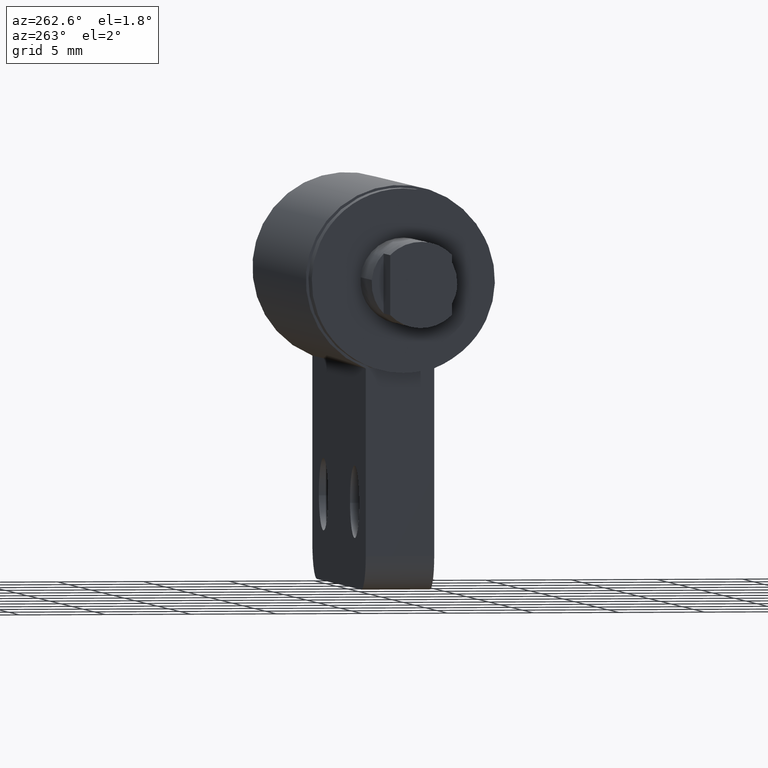
[diagram: clean part render]
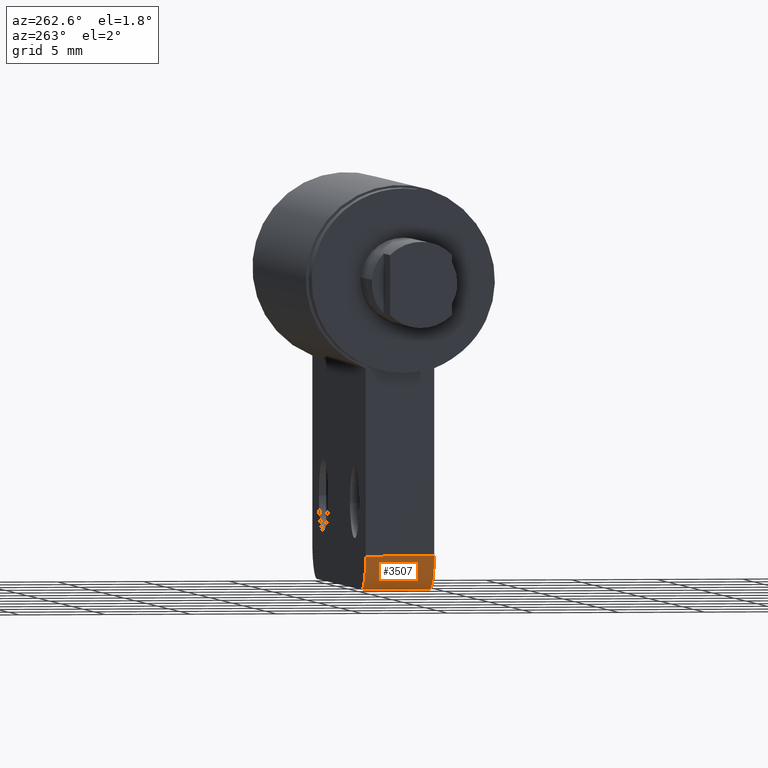
[diagram: same view with one face highlighted and labeled with its STEP entity id]
A machine part, auxiliary view. The second image highlights one B-rep face of the part: STEP entity #3507.
In plain terms, the highlighted face is a freeform B-spline surface patch.
Its self-contained STEP definition (entity closure, byte-faithful):
#3447=CARTESIAN_POINT('',(8.552353896615747,2.100000000000000,-17.999306649951020));
#3448=CARTESIAN_POINT('',(8.552353896615747,-2.102500000000000,-17.999306649951020));
#3449=CARTESIAN_POINT('',(6.350030811995568,2.100000000000000,-18.056976509514890));
#3450=CARTESIAN_POINT('',(6.350030811995568,-2.102499999999999,-18.056976509514890));
#3451=CARTESIAN_POINT('',(6.504951014980454,2.100000000000001,-15.859352221229885));
#3452=CARTESIAN_POINT('',(6.504951014980454,-2.102500000000000,-15.859352221229885));
#3460=(BOUNDED_SURFACE()B_SPLINE_SURFACE(1,2,((#3447,#3449,#3451),(#3448,#3450,#3452)),.UNSPECIFIED.,.F.,.F.,.U.)B_SPLINE_SURFACE_WITH_KNOTS((2,2),(3,3),(0.0,4.202500000000001),(0.0,3.542284241403802),.UNSPECIFIED.)GEOMETRIC_REPRESENTATION_ITEM()RATIONAL_B_SPLINE_SURFACE(((1.0,0.670944264567637,0.996392566691376),(1.0,0.670944264567637,0.996392566691376)))REPRESENTATION_ITEM('')SURFACE());
#3461=CARTESIAN_POINT('',(6.500000000000000,-2.0,-15.999991999999899));
#3462=VERTEX_POINT('',#3461);
#3463=CARTESIAN_POINT('',(8.500000000000000,-2.0,-17.999991999999899));
#3464=VERTEX_POINT('',#3463);
#3465=CARTESIAN_POINT('',(6.500000000000001,-2.0,-15.999991999999899));
#3466=CARTESIAN_POINT('',(6.500000000000003,-2.000000000000000,-17.999991999999907));
#3467=CARTESIAN_POINT('',(8.500000000000000,-2.0,-17.999991999999899));
#3475=(BOUNDED_CURVE()B_SPLINE_CURVE(2,(#3465,#3466,#3467),.UNSPECIFIED.,.F.,.U.)CURVE()GEOMETRIC_REPRESENTATION_ITEM()QUASI_UNIFORM_CURVE()RATIONAL_B_SPLINE_CURVE((1.0,0.707106781186548,1.0))REPRESENTATION_ITEM(''));
#3476=EDGE_CURVE('',#3462,#3464,#3475,.T.);
#3477=ORIENTED_EDGE('',*,*,#3476,.F.);
#3478=CARTESIAN_POINT('',(6.500000000000000,2.0,-15.999991999999899));
#3479=VERTEX_POINT('',#3478);
#3480=CARTESIAN_POINT('',(6.500000000000000,2.0,-15.999991999999899));
#3481=CARTESIAN_POINT('',(6.500000000000000,-2.0,-15.999991999999899));
#3482=QUASI_UNIFORM_CURVE('',1,(#3480,#3481),.UNSPECIFIED.,.F.,.U.);
#3483=EDGE_CURVE('',#3479,#3462,#3482,.T.);
#3484=ORIENTED_EDGE('',*,*,#3483,.F.);
#3485=CARTESIAN_POINT('',(8.500000000000000,2.0,-17.999991999999899));
#3486=VERTEX_POINT('',#3485);
#3487=CARTESIAN_POINT('',(8.500000000000000,2.0,-17.999991999999899));
#3488=CARTESIAN_POINT('',(6.500000000000003,2.000000000000000,-17.999991999999907));
#3489=CARTESIAN_POINT('',(6.500000000000001,2.0,-15.999991999999899));
#3497=(BOUNDED_CURVE()B_SPLINE_CURVE(2,(#3487,#3488,#3489),.UNSPECIFIED.,.F.,.U.)CURVE()GEOMETRIC_REPRESENTATION_ITEM()QUASI_UNIFORM_CURVE()RATIONAL_B_SPLINE_CURVE((1.0,0.707106781186548,1.0))REPRESENTATION_ITEM(''));
#3498=EDGE_CURVE('',#3486,#3479,#3497,.T.);
#3499=ORIENTED_EDGE('',*,*,#3498,.F.);
#3500=CARTESIAN_POINT('',(8.500000000000000,-2.0,-17.999991999999899));
#3501=CARTESIAN_POINT('',(8.500000000000000,2.0,-17.999991999999899));
#3502=QUASI_UNIFORM_CURVE('',1,(#3500,#3501),.UNSPECIFIED.,.F.,.U.);
#3503=EDGE_CURVE('',#3464,#3486,#3502,.T.);
#3504=ORIENTED_EDGE('',*,*,#3503,.F.);
#3505=EDGE_LOOP('',(#3477,#3484,#3499,#3504));
#3506=FACE_OUTER_BOUND('',#3505,.T.);
#3507=ADVANCED_FACE('',(#3506),#3460,.T.);